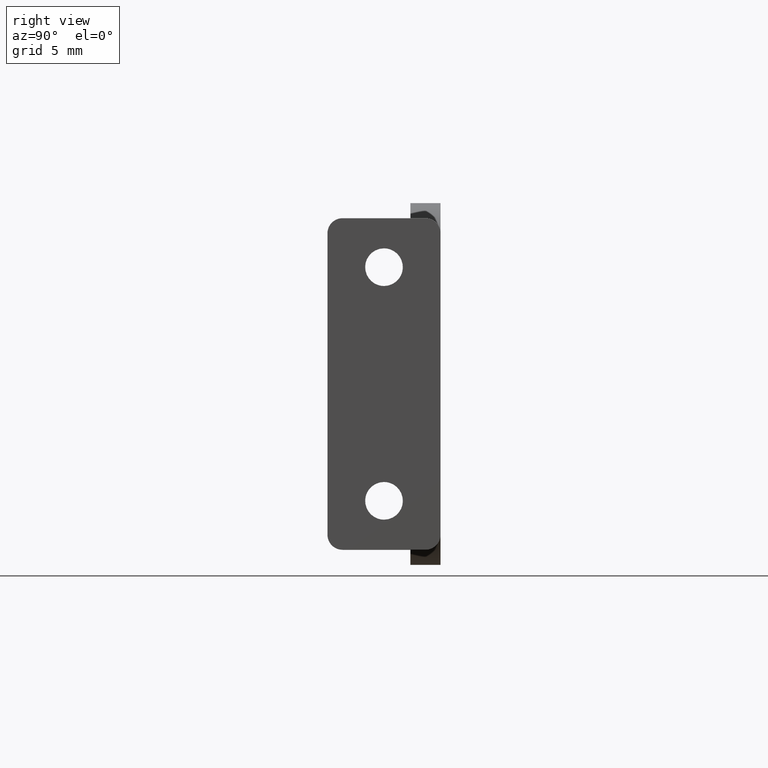
[diagram: clean part render]
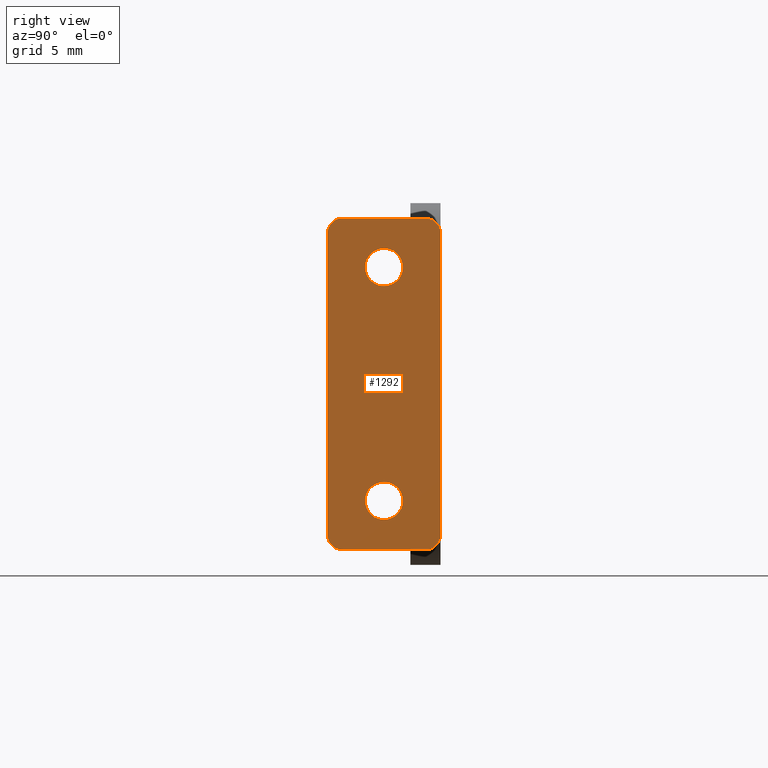
[diagram: same view with one face highlighted and labeled with its STEP entity id]
A machine part, right view. The second image highlights one B-rep face of the part: STEP entity #1292.
In plain terms, the highlighted face is a freeform B-spline surface patch.
Its self-contained STEP definition (entity closure, byte-faithful):
#96=CARTESIAN_POINT('',(21.500000000000000,1.246146667161945,7.651926130283466));
#97=VERTEX_POINT('',#96);
#103=CARTESIAN_POINT('',(21.500000000000000,0.0,9.0));
#104=VERTEX_POINT('',#103);
#105=CARTESIAN_POINT('',(21.500000000000004,1.246146667161945,7.651926130283466));
#106=CARTESIAN_POINT('',(21.500000000000000,1.250000000000000,7.700887366183423));
#107=CARTESIAN_POINT('',(21.500000000000000,1.250000000000000,7.750000000000000));
#108=CARTESIAN_POINT('',(21.499999999999996,1.250000000000000,9.000000000000002));
#109=CARTESIAN_POINT('',(21.500000000000000,0.0,9.0));
#117=(BOUNDED_CURVE()B_SPLINE_CURVE(2,(#105,#106,#107,#108,#109),.UNSPECIFIED.,.F.,.U.)B_SPLINE_CURVE_WITH_KNOTS((3,2,3),(0.736331300617160,0.750000000000000,1.0),.UNSPECIFIED.)CURVE()GEOMETRIC_REPRESENTATION_ITEM()RATIONAL_B_SPLINE_CURVE((0.969723356139244,0.983986122563066,1.0,0.707106781186548,1.0))REPRESENTATION_ITEM(''));
#118=EDGE_CURVE('',#97,#104,#117,.T.);
#120=CARTESIAN_POINT('',(21.500000000000000,-1.246146667161945,7.848073869716535));
#121=VERTEX_POINT('',#120);
#122=CARTESIAN_POINT('',(21.500000000000000,0.0,9.0));
#123=CARTESIAN_POINT('',(21.499999999999996,-1.155488114467232,9.000000000000002));
#124=CARTESIAN_POINT('',(21.500000000000004,-1.246146667161945,7.848073869716535));
#132=(BOUNDED_CURVE()B_SPLINE_CURVE(2,(#122,#123,#124),.UNSPECIFIED.,.F.,.U.)B_SPLINE_CURVE_WITH_KNOTS((3,3),(0.0,0.236331300617160),.UNSPECIFIED.)CURVE()GEOMETRIC_REPRESENTATION_ITEM()RATIONAL_B_SPLINE_CURVE((1.0,0.723120658623482,0.969723356139244))REPRESENTATION_ITEM(''));
#133=EDGE_CURVE('',#104,#121,#132,.T.);
#179=CARTESIAN_POINT('',(21.500000000000000,0.0,6.500000000000000));
#180=VERTEX_POINT('',#179);
#181=CARTESIAN_POINT('',(21.500000000000004,-1.246146667161945,7.848073869716534));
#182=CARTESIAN_POINT('',(21.500000000000000,-1.250000000000000,7.799112633816578));
#183=CARTESIAN_POINT('',(21.500000000000000,-1.250000000000000,7.750000000000000));
#184=CARTESIAN_POINT('',(21.499999999999996,-1.250000000000000,6.500000000000001));
#185=CARTESIAN_POINT('',(21.500000000000000,0.0,6.500000000000000));
#193=(BOUNDED_CURVE()B_SPLINE_CURVE(2,(#181,#182,#183,#184,#185),.UNSPECIFIED.,.F.,.U.)B_SPLINE_CURVE_WITH_KNOTS((3,2,3),(0.236331300617160,0.250000000000000,0.500000000000000),.UNSPECIFIED.)CURVE()GEOMETRIC_REPRESENTATION_ITEM()RATIONAL_B_SPLINE_CURVE((0.969723356139244,0.983986122563066,1.0,0.707106781186548,1.0))REPRESENTATION_ITEM(''));
#194=EDGE_CURVE('',#121,#180,#193,.T.);
#196=CARTESIAN_POINT('',(21.500000000000000,0.0,6.500000000000000));
#197=CARTESIAN_POINT('',(21.500000000000007,1.155488114467226,6.500000000000001));
#198=CARTESIAN_POINT('',(21.499999999999996,1.246146667161946,7.651926130283466));
#206=(BOUNDED_CURVE()B_SPLINE_CURVE(2,(#196,#197,#198),.UNSPECIFIED.,.F.,.U.)B_SPLINE_CURVE_WITH_KNOTS((3,3),(0.500000000000000,0.736331300617159),.UNSPECIFIED.)CURVE()GEOMETRIC_REPRESENTATION_ITEM()RATIONAL_B_SPLINE_CURVE((1.0,0.723120658623483,0.969723356139242))REPRESENTATION_ITEM(''));
#207=EDGE_CURVE('',#180,#97,#206,.T.);
#278=CARTESIAN_POINT('',(21.500000000000000,1.246146667161945,-7.848073869716535));
#279=VERTEX_POINT('',#278);
#285=CARTESIAN_POINT('',(21.500000000000000,0.0,-6.500000000000000));
#286=VERTEX_POINT('',#285);
#287=CARTESIAN_POINT('',(21.500000000000000,1.246146667161945,-7.848073869716535));
#288=CARTESIAN_POINT('',(21.500000000000004,1.250000000000000,-7.799112633816579));
#289=CARTESIAN_POINT('',(21.500000000000000,1.250000000000000,-7.750000000000000));
#290=CARTESIAN_POINT('',(21.499999999999996,1.250000000000000,-6.500000000000001));
#291=CARTESIAN_POINT('',(21.500000000000000,0.0,-6.500000000000000));
#299=(BOUNDED_CURVE()B_SPLINE_CURVE(2,(#287,#288,#289,#290,#291),.UNSPECIFIED.,.F.,.U.)B_SPLINE_CURVE_WITH_KNOTS((3,2,3),(0.736331300617159,0.750000000000000,1.0),.UNSPECIFIED.)CURVE()GEOMETRIC_REPRESENTATION_ITEM()RATIONAL_B_SPLINE_CURVE((0.969723356139244,0.983986122563065,1.0,0.707106781186548,1.0))REPRESENTATION_ITEM(''));
#300=EDGE_CURVE('',#279,#286,#299,.T.);
#302=CARTESIAN_POINT('',(21.500000000000000,-1.246146667161945,-7.651926130283465));
#303=VERTEX_POINT('',#302);
#304=CARTESIAN_POINT('',(21.500000000000000,0.0,-6.500000000000000));
#305=CARTESIAN_POINT('',(21.500000000000000,-1.155488114467233,-6.500000000000000));
#306=CARTESIAN_POINT('',(21.499999999999996,-1.246146667161945,-7.651926130283465));
#314=(BOUNDED_CURVE()B_SPLINE_CURVE(2,(#304,#305,#306),.UNSPECIFIED.,.F.,.U.)B_SPLINE_CURVE_WITH_KNOTS((3,3),(0.0,0.236331300617160),.UNSPECIFIED.)CURVE()GEOMETRIC_REPRESENTATION_ITEM()RATIONAL_B_SPLINE_CURVE((1.0,0.723120658623482,0.969723356139244))REPRESENTATION_ITEM(''));
#315=EDGE_CURVE('',#286,#303,#314,.T.);
#361=CARTESIAN_POINT('',(21.500000000000000,0.0,-9.0));
#362=VERTEX_POINT('',#361);
#363=CARTESIAN_POINT('',(21.500000000000000,-1.246146667161945,-7.651926130283465));
#364=CARTESIAN_POINT('',(21.499999999999996,-1.250000000000000,-7.700887366183422));
#365=CARTESIAN_POINT('',(21.500000000000000,-1.250000000000000,-7.750000000000000));
#366=CARTESIAN_POINT('',(21.499999999999996,-1.250000000000000,-9.000000000000002));
#367=CARTESIAN_POINT('',(21.500000000000000,0.0,-9.0));
#375=(BOUNDED_CURVE()B_SPLINE_CURVE(2,(#363,#364,#365,#366,#367),.UNSPECIFIED.,.F.,.U.)B_SPLINE_CURVE_WITH_KNOTS((3,2,3),(0.236331300617160,0.250000000000000,0.500000000000000),.UNSPECIFIED.)CURVE()GEOMETRIC_REPRESENTATION_ITEM()RATIONAL_B_SPLINE_CURVE((0.969723356139244,0.983986122563066,1.0,0.707106781186548,1.0))REPRESENTATION_ITEM(''));
#376=EDGE_CURVE('',#303,#362,#375,.T.);
#378=CARTESIAN_POINT('',(21.500000000000000,0.0,-9.0));
#379=CARTESIAN_POINT('',(21.500000000000007,1.155488114467226,-9.0));
#380=CARTESIAN_POINT('',(21.499999999999996,1.246146667161945,-7.848073869716535));
#388=(BOUNDED_CURVE()B_SPLINE_CURVE(2,(#378,#379,#380),.UNSPECIFIED.,.F.,.U.)B_SPLINE_CURVE_WITH_KNOTS((3,3),(0.500000000000000,0.736331300617159),.UNSPECIFIED.)CURVE()GEOMETRIC_REPRESENTATION_ITEM()RATIONAL_B_SPLINE_CURVE((1.0,0.723120658623483,0.969723356139242))REPRESENTATION_ITEM(''));
#389=EDGE_CURVE('',#362,#279,#388,.T.);
#534=CARTESIAN_POINT('',(21.500000000000000,-2.750000000000000,11.0));
#535=VERTEX_POINT('',#534);
#536=CARTESIAN_POINT('',(21.500000000000000,-3.750000000000000,10.0));
#537=VERTEX_POINT('',#536);
#538=CARTESIAN_POINT('',(21.500000000000000,-2.750000000000000,11.0));
#539=CARTESIAN_POINT('',(21.499999999999996,-3.749999999999999,11.0));
#540=CARTESIAN_POINT('',(21.500000000000000,-3.750000000000000,10.0));
#548=(BOUNDED_CURVE()B_SPLINE_CURVE(2,(#538,#539,#540),.UNSPECIFIED.,.F.,.U.)CURVE()GEOMETRIC_REPRESENTATION_ITEM()QUASI_UNIFORM_CURVE()RATIONAL_B_SPLINE_CURVE((1.0,0.707106781186548,1.0))REPRESENTATION_ITEM(''));
#549=EDGE_CURVE('',#535,#537,#548,.T.);
#595=CARTESIAN_POINT('',(21.500000000000000,3.750000000000000,10.0));
#596=VERTEX_POINT('',#595);
#597=CARTESIAN_POINT('',(21.500000000000000,2.750000000000000,11.0));
#598=VERTEX_POINT('',#597);
#599=CARTESIAN_POINT('',(21.500000000000000,3.750000000000000,10.0));
#600=CARTESIAN_POINT('',(21.499999999999996,3.749999999999999,11.0));
#601=CARTESIAN_POINT('',(21.500000000000000,2.750000000000000,11.0));
#609=(BOUNDED_CURVE()B_SPLINE_CURVE(2,(#599,#600,#601),.UNSPECIFIED.,.F.,.U.)CURVE()GEOMETRIC_REPRESENTATION_ITEM()QUASI_UNIFORM_CURVE()RATIONAL_B_SPLINE_CURVE((1.0,0.707106781186548,1.0))REPRESENTATION_ITEM(''));
#610=EDGE_CURVE('',#596,#598,#609,.T.);
#673=CARTESIAN_POINT('',(21.500000000000000,-2.750000000000000,-11.0));
#674=VERTEX_POINT('',#673);
#680=CARTESIAN_POINT('',(21.500000000000000,-3.750000000000000,-10.0));
#681=VERTEX_POINT('',#680);
#682=CARTESIAN_POINT('',(21.500000000000000,-3.750000000000000,-10.0));
#683=CARTESIAN_POINT('',(21.499999999999996,-3.749999999999999,-11.0));
#684=CARTESIAN_POINT('',(21.500000000000000,-2.750000000000000,-11.0));
#692=(BOUNDED_CURVE()B_SPLINE_CURVE(2,(#682,#683,#684),.UNSPECIFIED.,.F.,.U.)CURVE()GEOMETRIC_REPRESENTATION_ITEM()QUASI_UNIFORM_CURVE()RATIONAL_B_SPLINE_CURVE((1.0,0.707106781186548,1.0))REPRESENTATION_ITEM(''));
#693=EDGE_CURVE('',#681,#674,#692,.T.);
#734=CARTESIAN_POINT('',(21.500000000000000,3.750000000000000,-10.0));
#735=VERTEX_POINT('',#734);
#741=CARTESIAN_POINT('',(21.500000000000000,2.750000000000000,-11.0));
#742=VERTEX_POINT('',#741);
#743=CARTESIAN_POINT('',(21.500000000000000,2.750000000000000,-11.0));
#744=CARTESIAN_POINT('',(21.499999999999996,3.749999999999999,-11.0));
#745=CARTESIAN_POINT('',(21.500000000000000,3.750000000000000,-10.0));
#753=(BOUNDED_CURVE()B_SPLINE_CURVE(2,(#743,#744,#745),.UNSPECIFIED.,.F.,.U.)CURVE()GEOMETRIC_REPRESENTATION_ITEM()QUASI_UNIFORM_CURVE()RATIONAL_B_SPLINE_CURVE((1.0,0.707106781186548,1.0))REPRESENTATION_ITEM(''));
#754=EDGE_CURVE('',#742,#735,#753,.T.);
#769=CARTESIAN_POINT('',(21.500000000000000,2.750000000000000,11.0));
#770=CARTESIAN_POINT('',(21.500000000000000,-2.750000000000000,11.0));
#771=QUASI_UNIFORM_CURVE('',1,(#769,#770),.UNSPECIFIED.,.F.,.U.);
#772=EDGE_CURVE('',#598,#535,#771,.T.);
#795=CARTESIAN_POINT('',(21.500000000000000,2.750000000000000,-11.0));
#796=CARTESIAN_POINT('',(21.500000000000000,-2.750000000000000,-11.0));
#797=QUASI_UNIFORM_CURVE('',1,(#795,#796),.UNSPECIFIED.,.F.,.U.);
#798=EDGE_CURVE('',#742,#674,#797,.T.);
#1257=CARTESIAN_POINT('',(21.500000000000000,-4.124624985463544,12.098899957359730));
#1258=CARTESIAN_POINT('',(21.500000000000000,-4.124624985463544,-12.098900547445711));
#1259=CARTESIAN_POINT('',(21.500000000000000,4.124625186629221,12.098899957359730));
#1260=CARTESIAN_POINT('',(21.500000000000000,4.124625186629221,-12.098900547445711));
#1261=B_SPLINE_SURFACE_WITH_KNOTS('',1,1,((#1257,#1259),(#1258,#1260)),.UNSPECIFIED.,.F.,.F.,.U.,(2,2),(2,2),(0.0,24.197800504805439),(0.0,8.249250172092765),.UNSPECIFIED.);
#1262=ORIENTED_EDGE('',*,*,#798,.F.);
#1263=ORIENTED_EDGE('',*,*,#754,.T.);
#1264=CARTESIAN_POINT('',(21.500000000000000,3.750000000000000,-10.0));
#1265=CARTESIAN_POINT('',(21.500000000000000,3.750000000000000,10.0));
#1266=QUASI_UNIFORM_CURVE('',1,(#1264,#1265),.UNSPECIFIED.,.F.,.U.);
#1267=EDGE_CURVE('',#735,#596,#1266,.T.);
#1268=ORIENTED_EDGE('',*,*,#1267,.T.);
#1269=ORIENTED_EDGE('',*,*,#610,.T.);
#1270=ORIENTED_EDGE('',*,*,#772,.T.);
#1271=ORIENTED_EDGE('',*,*,#549,.T.);
#1272=CARTESIAN_POINT('',(21.500000000000000,-3.750000000000000,-10.0));
#1273=CARTESIAN_POINT('',(21.500000000000000,-3.750000000000000,10.0));
#1274=QUASI_UNIFORM_CURVE('',1,(#1272,#1273),.UNSPECIFIED.,.F.,.U.);
#1275=EDGE_CURVE('',#681,#537,#1274,.T.);
#1276=ORIENTED_EDGE('',*,*,#1275,.F.);
#1277=ORIENTED_EDGE('',*,*,#693,.T.);
#1278=EDGE_LOOP('',(#1262,#1263,#1268,#1269,#1270,#1271,#1276,#1277));
#1279=FACE_OUTER_BOUND('',#1278,.T.);
#1280=ORIENTED_EDGE('',*,*,#389,.F.);
#1281=ORIENTED_EDGE('',*,*,#376,.F.);
#1282=ORIENTED_EDGE('',*,*,#315,.F.);
#1283=ORIENTED_EDGE('',*,*,#300,.F.);
#1284=EDGE_LOOP('',(#1280,#1281,#1282,#1283));
#1285=FACE_BOUND('',#1284,.T.);
#1286=ORIENTED_EDGE('',*,*,#207,.F.);
#1287=ORIENTED_EDGE('',*,*,#194,.F.);
#1288=ORIENTED_EDGE('',*,*,#133,.F.);
#1289=ORIENTED_EDGE('',*,*,#118,.F.);
#1290=EDGE_LOOP('',(#1286,#1287,#1288,#1289));
#1291=FACE_BOUND('',#1290,.T.);
#1292=ADVANCED_FACE('',(#1279,#1285,#1291),#1261,.T.);